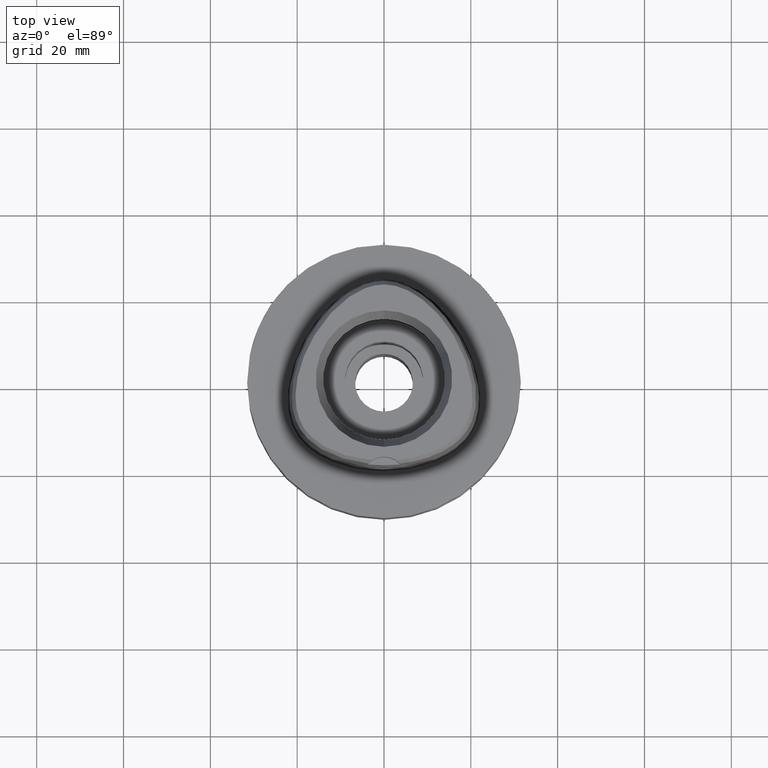
[diagram: clean part render]
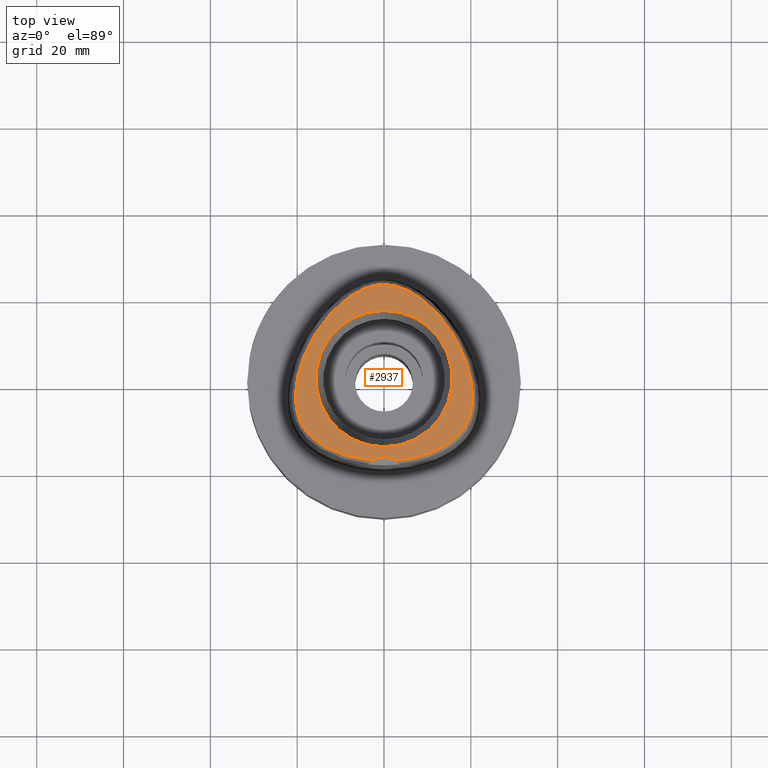
[diagram: same view with one face highlighted and labeled with its STEP entity id]
A machine part, top view. The second image highlights one B-rep face of the part: STEP entity #2937.
In plain terms, the highlighted planar face has unit normal (0, 0, 1).
Its self-contained STEP definition (entity closure, byte-faithful):
#4 = CARTESIAN_POINT ( 'NONE',  ( -7.655222869372603434, 19.09452359226051499, 37.99999999999657518 ) ) ;
#70 = CARTESIAN_POINT ( 'NONE',  ( 20.30478359881995232, -2.175347700950326590, 37.99999999999653966 ) ) ;
#81 = CARTESIAN_POINT ( 'NONE',  ( -2.682279906006999948, -18.78035848609999903, 38.00000000000000000 ) ) ;
#95 = CARTESIAN_POINT ( 'NONE',  ( 6.760281394351300044, 19.65404668909741659, 37.99999999999610623 ) ) ;
#104 = EDGE_LOOP ( 'NONE', ( #3898, #4051 ) ) ;
#117 = CARTESIAN_POINT ( 'NONE',  ( 2.736932690726805451, 21.34527940056899808, 37.99999999999971578 ) ) ;
#146 = CARTESIAN_POINT ( 'NONE',  ( 3.482188079160006833, 21.13472718027362163, 37.99999999999623412 ) ) ;
#168 = CARTESIAN_POINT ( 'NONE',  ( -12.37132652997894233, -16.34104299088286538, 38.00000000000146372 ) ) ;
#176 = CARTESIAN_POINT ( 'NONE',  ( 16.09765529146627827, 9.909410920133350231, 37.99999999999131717 ) ) ;
#189 = CARTESIAN_POINT ( 'NONE',  ( -20.38301517463099444, -3.278344853328190034, 37.99999999999872102 ) ) ;
#214 = CARTESIAN_POINT ( 'NONE',  ( -7.599370508970445748, -18.01010694911639121, 38.00000000000269296 ) ) ;
#236 = CARTESIAN_POINT ( 'NONE',  ( -8.930096025510854574, -17.65000298921539823, 37.99999999999941025 ) ) ;
#283 = CARTESIAN_POINT ( 'NONE',  ( -15.24692477331905671, 11.25717358965922621, 38.00000000000510880 ) ) ;
#305 = CARTESIAN_POINT ( 'NONE',  ( -10.48962422759867152, 16.86631853279130766, 38.00000000000136424 ) ) ;
#432 = VERTEX_POINT ( 'NONE', #81 ) ;
#471 = CARTESIAN_POINT ( 'NONE',  ( 15.72078707640384820, -14.29615620309023960, 38.00000000000054001 ) ) ;
#500 = CARTESIAN_POINT ( 'NONE',  ( 18.24247239569593404, 5.672548708072124413, 37.99999999999958078 ) ) ;
#511 = VERTEX_POINT ( 'NONE', #2743 ) ;
#520 = CARTESIAN_POINT ( 'NONE',  ( 18.99619228226881873, -10.46780014453620034, 37.99999999999307931 ) ) ;
#544 = CARTESIAN_POINT ( 'NONE',  ( 1.325020189552571503, 21.61081414409536805, 37.99999999999428013 ) ) ;
#567 = CARTESIAN_POINT ( 'NONE',  ( -20.40060226222869488, -4.311417605381804741, 38.00000000000196820 ) ) ;
#576 = CARTESIAN_POINT ( 'NONE',  ( 19.64387775268211556, 1.522048414457864096, 37.99999999999704414 ) ) ;
#593 = CARTESIAN_POINT ( 'NONE',  ( -19.94188961899396517, 0.2242544969878184913, 38.00000000000156319 ) ) ;
#665 = CARTESIAN_POINT ( 'NONE',  ( -16.93638123745276403, -13.22593246128309019, 37.99999999999478462 ) ) ;
#690 = CARTESIAN_POINT ( 'NONE',  ( -11.46564124494769388, 15.92741340513784110, 37.99999999999322142 ) ) ;
#711 = CARTESIAN_POINT ( 'NONE',  ( -19.26324493738722765, 2.868570891457355998, 37.99999999999872813 ) ) ;
#759 = CARTESIAN_POINT ( 'NONE',  ( -2.017025177696301963, 21.50280829368474400, 37.99999999999538147 ) ) ;
#860 = CARTESIAN_POINT ( 'NONE',  ( -3.470663392950000163E-11, 21.68728795390000030, 38.00000000000000000 ) ) ;
#884 = CARTESIAN_POINT ( 'NONE',  ( 14.21382211799414819, -15.34284287400055824, 37.99999999999823785 ) ) ;
#899 = CIRCLE ( 'NONE', #2195, 15.71487483155999776 ) ;
#913 = CARTESIAN_POINT ( 'NONE',  ( 15.24661770199036859, 11.25762885478625108, 37.99999999999867129 ) ) ;
#938 = CARTESIAN_POINT ( 'NONE',  ( 18.79595068775774536, 4.257753965102486937, 37.99999999999854339 ) ) ;
#966 = CARTESIAN_POINT ( 'NONE',  ( 4.255661039972385318, 20.86618068829834982, 37.99999999999498357 ) ) ;
#984 = CARTESIAN_POINT ( 'NONE',  ( -17.91005512243596698, -12.13778127739563750, 37.99999999999936762 ) ) ;
#1054 = CARTESIAN_POINT ( 'NONE',  ( -18.67608643721901629, -11.03561202291101573, 37.99999999999879918 ) ) ;
#1066 = CARTESIAN_POINT ( 'NONE',  ( 0.0000000000000000000, 0.0000000000000000000, 38.00000000000000000 ) ) ;
#1101 = CARTESIAN_POINT ( 'NONE',  ( -12.44116897271441680, 14.89128547409751491, 37.99999999999761968 ) ) ;
#1124 = CARTESIAN_POINT ( 'NONE',  ( -0.2181979014508680648, 21.68728795389069930, 37.99999999999545253 ) ) ;
#1239 = CARTESIAN_POINT ( 'NONE',  ( 16.93855157777624498, -13.22377441789050678, 37.99999999999112532 ) ) ;
#1256 = ORIENTED_EDGE ( 'NONE', *, *, #4597, .F. ) ;
#1264 = CARTESIAN_POINT ( 'NONE',  ( 0.6513209347956142592, 21.67370899611885804, 37.99999999999688782 ) ) ;
#1290 = CARTESIAN_POINT ( 'NONE',  ( 8.936919536467357261, -17.64796721715781658, 37.99999999999330669 ) ) ;
#1318 = CARTESIAN_POINT ( 'NONE',  ( 7.655962789343898400, 19.09402979100165965, 38.00000000000339639 ) ) ;
#1340 = CARTESIAN_POINT ( 'NONE',  ( 12.44125753246752986, 14.89118158853901974, 37.99999999999801048 ) ) ;
#1359 = CARTESIAN_POINT ( 'NONE',  ( -15.00295592773774089, -14.82617991125712109, 38.00000000000257216 ) ) ;
#1366 = DIRECTION ( 'NONE',  ( 0.0000000000000000000, -1.000000000000000000, 0.0000000000000000000 ) ) ;
#1410 = CARTESIAN_POINT ( 'NONE',  ( -11.31790883121477087, -16.80796958613890268, 37.99999999999396749 ) ) ;
#1432 = CARTESIAN_POINT ( 'NONE',  ( -4.706994425064463528, -18.56721852572441733, 38.00000000000720490 ) ) ;
#1457 = CARTESIAN_POINT ( 'NONE',  ( -14.34402387965957715, 12.54761970512388025, 37.99999999999798206 ) ) ;
#1483 = CARTESIAN_POINT ( 'NONE',  ( -9.524337278002398932, 17.70558492631218428, 38.00000000000005684 ) ) ;
#1530 = CARTESIAN_POINT ( 'NONE',  ( -5.893543501601275381, 20.13235399352214472, 38.00000000000198241 ) ) ;
#1561 = EDGE_CURVE ( 'NONE', #432, #511, #1950, .T. ) ;
#1621 = CARTESIAN_POINT ( 'NONE',  ( 18.31883910943066951, -11.58595831188162961, 37.99999999999618439 ) ) ;
#1648 = CARTESIAN_POINT ( 'NONE',  ( 9.524842839488274038, 17.70516372194600763, 38.00000000000160583 ) ) ;
#1662 = VERTEX_POINT ( 'NONE', #4273 ) ;
#1674 = CARTESIAN_POINT ( 'NONE',  ( 10.48999540691025700, 16.86597469869619559, 37.99999999999843681 ) ) ;
#1676 = ORIENTED_EDGE ( 'NONE', *, *, #1561, .F. ) ;
#1719 = CARTESIAN_POINT ( 'NONE',  ( -20.27898581532648237, -6.181921586190489926, 37.99999999999319300 ) ) ;
#1727 = CARTESIAN_POINT ( 'NONE',  ( 19.26272899268519012, 2.870227893749674131, 37.99999999999284483 ) ) ;
#1788 = CARTESIAN_POINT ( 'NONE',  ( -6.188376196366633053, -18.31830638231285491, 37.99999999999435829 ) ) ;
#1822 = AXIS2_PLACEMENT_3D ( 'NONE', #3089, #3474, #3887 ) ;
#1838 = CARTESIAN_POINT ( 'NONE',  ( -13.40435640711657683, 13.76268382997220563, 37.99999999999792522 ) ) ;
#1839 = EDGE_LOOP ( 'NONE', ( #1256, #1676, #4024 ) ) ;
#1861 = CARTESIAN_POINT ( 'NONE',  ( -1.323674540694443902, 21.61098849315967030, 38.00000000000201794 ) ) ;
#1931 = DIRECTION ( 'NONE',  ( 0.0000000000000000000, 0.0000000000000000000, 1.000000000000000000 ) ) ;
#1950 = B_SPLINE_CURVE_WITH_KNOTS ( 'NONE', 3,
 ( #2173, #3700, #4807, #1432, #1788, #214, #236, #3327, #1410, #168, #2128, #2218, #1359, #2895, #4507, #665, #2942, #984, #4485, #1054, #2509, #4039, #3656, #4782, #2575, #2600, #1719, #3249, #567, #189, #4438, #4064, #593, #2151, #711, #3441, #4221, #4627, #4971, #4150, #283, #1457, #1838, #1101, #690, #305, #1483, #4897, #4, #3036, #1530, #4584, #3080, #2623, #4560, #759, #1861, #3373, #1124, #3014 ),
 .UNSPECIFIED., .F., .F.,
 ( 4, 1, 1, 1, 1, 1, 1, 1, 1, 1, 1, 1, 1, 1, 1, 1, 1, 1, 1, 1, 1, 1, 1, 1, 1, 1, 1, 1, 1, 1, 1, 1, 1, 1, 1, 1, 1, 1, 1, 1, 1, 1, 1, 1, 1, 1, 1, 1, 1, 1, 1, 1, 1, 1, 1, 1, 1, 4 ),
 ( 0.0000000000000000000, 0.005420919554200098744, 0.02318126027639999531, 0.04094160099879995407, 0.05870194172099996166, 0.07646228244330000035, 0.09422262316550000794, 0.1119829638877999356, 0.1297433046099999432, 0.1475036453321999508, 0.1652639860544999895, 0.1830243267768000281, 0.2007846674991000668, 0.2185450082212999634, 0.2363053489436000021, 0.2540656896658000097, 0.2718260303881000484, 0.2895863711103000560, 0.3073467118325999836, 0.3251070525547999912, 0.3428673932771000299, 0.3606277339994000686, 0.3783880747216000762, 0.3961484154438998928, 0.4139087561661000114, 0.4316690968884000501, 0.4494294376106000577, 0.4671897783328999854, 0.4849501190552000240, 0.5027104597774000316, 0.5204708004996999593, 0.5382311412219000779, 0.5559914819442000056, 0.5737518226664000132, 0.5915121633886999408, 0.6092725041108999484, 0.6270328448331999871, 0.6447931855555000258, 0.6625535262777000334, 0.6803138669999999610, 0.6980742077221999686, 0.7158345484445000073, 0.7335948891667000149, 0.7513552298890000536, 0.7691155706112000612, 0.7868759113336000199, 0.8046362520558000275, 0.8223965927780999552, 0.8401569335002999628, 0.8579172742224999704, 0.8756776149448000091, 0.8934379556670000166, 0.9111982963893099363, 0.9289586371115700070, 0.9467189778338299666, 0.9644793185560800453, 0.9822396592783400049, 1.000000000000000000 ),
 .UNSPECIFIED. ) ;
#2027 = CARTESIAN_POINT ( 'NONE',  ( 15.00628712263210751, -14.82385870794422011, 37.99999999999617728 ) ) ;
#2054 = CARTESIAN_POINT ( 'NONE',  ( 10.17751632998319700, -17.24426134459265825, 37.99999999999709388 ) ) ;
#2079 = CARTESIAN_POINT ( 'NONE',  ( 17.60373714027972625, 7.099883643192929306, 37.99999999999411671 ) ) ;
#2106 = CARTESIAN_POINT ( 'NONE',  ( 5.059249257021361856, 20.53399274679488684, 37.99999999999135269 ) ) ;
#2128 = CARTESIAN_POINT ( 'NONE',  ( -13.33457781970028222, -15.85148397417797739, 38.00000000000603251 ) ) ;
#2151 = CARTESIAN_POINT ( 'NONE',  ( -19.64434054693564491, 1.520253387635800202, 37.99999999999477751 ) ) ;
#2173 = CARTESIAN_POINT ( 'NONE',  ( -2.682279906006999948, -18.78035848609999903, 38.00000000000000000 ) ) ;
#2195 = AXIS2_PLACEMENT_3D ( 'NONE', #1066, #2630, #1366 ) ;
#2218 = CARTESIAN_POINT ( 'NONE',  ( -14.21001600787850450, -15.34519100085690901, 37.99999999999521805 ) ) ;
#2314 = VERTEX_POINT ( 'NONE', #2789 ) ;
#2320 = FACE_BOUND ( 'NONE', #104, .T. ) ;
#2381 = EDGE_CURVE ( 'NONE', #4580, #432, #3838, .T. ) ;
#2408 = CARTESIAN_POINT ( 'NONE',  ( 5.894487344450890731, 20.13186406532267725, 37.99999999999030820 ) ) ;
#2436 = CARTESIAN_POINT ( 'NONE',  ( 12.37622418509489464, -16.33871033286414232, 37.99999999999431566 ) ) ;
#2463 = CARTESIAN_POINT ( 'NONE',  ( 16.88599964843550794, 8.518708218770330021, 37.99999999999685230 ) ) ;
#2491 = CARTESIAN_POINT ( 'NONE',  ( 19.94150023627758728, 0.2261566111946525237, 37.99999999999804601 ) ) ;
#2509 = CARTESIAN_POINT ( 'NONE',  ( -18.99520880204024209, -10.46968343926450729, 37.99999999999928946 ) ) ;
#2517 = CARTESIAN_POINT ( 'NONE',  ( 11.46587147800062034, 15.92717600803250022, 37.99999999999866418 ) ) ;
#2575 = CARTESIAN_POINT ( 'NONE',  ( -19.98419490692067768, -7.809898894996216256, 37.99999999999869260 ) ) ;
#2600 = CARTESIAN_POINT ( 'NONE',  ( -20.15090095365181710, -7.024227649787724737, 38.00000000000494538 ) ) ;
#2623 = CARTESIAN_POINT ( 'NONE',  ( -3.481017203588934184, 21.13509756882168134, 37.99999999999846523 ) ) ;
#2630 = DIRECTION ( 'NONE',  ( 0.0000000000000000000, 0.0000000000000000000, 1.000000000000000000 ) ) ;
#2743 = CARTESIAN_POINT ( 'NONE',  ( -3.470663392950000163E-11, 21.68728795390000030, 38.00000000000000000 ) ) ;
#2789 = CARTESIAN_POINT ( 'NONE',  ( 0.0000000000000000000, -15.71487483155999776, 38.00000000000000000 ) ) ;
#2795 = AXIS2_PLACEMENT_3D ( 'NONE', #4973, #1931, #3083 ) ;
#2806 = CARTESIAN_POINT ( 'NONE',  ( 16.36283630828776481, -13.76236604535425556, 38.00000000000084555 ) ) ;
#2812 = CARTESIAN_POINT ( 'NONE',  ( 0.0000000000000000000, -23.00000000000000000, 38.00000000000000000 ) ) ;
#2855 = CARTESIAN_POINT ( 'NONE',  ( 8.578848111817571009, 18.44609846598882541, 37.99999999999457856 ) ) ;
#2881 = CARTESIAN_POINT ( 'NONE',  ( 19.28677546796982867, -9.867757137506544041, 37.99999999999212008 ) ) ;
#2895 = CARTESIAN_POINT ( 'NONE',  ( -15.71788912669412674, -14.29843101566463304, 37.99999999999928235 ) ) ;
#2937 = ADVANCED_FACE ( 'NONE', ( #4617, #2320 ), #4233, .T. ) ;
#2942 = CARTESIAN_POINT ( 'NONE',  ( -17.45119705493735296, -12.68365517585349700, 38.00000000000534328 ) ) ;
#3003 = CARTESIAN_POINT ( 'NONE',  ( 3.529311563348127123, -18.70747079909919464, 37.99999999999565858 ) ) ;
#3014 = CARTESIAN_POINT ( 'NONE',  ( -3.470663392950000163E-11, 21.68728795390000030, 38.00000000000000000 ) ) ;
#3036 = CARTESIAN_POINT ( 'NONE',  ( -6.759433772717536648, 19.65454812513075566, 37.99999999999465672 ) ) ;
#3075 = DIRECTION ( 'NONE',  ( 0.0000000000000000000, 0.0000000000000000000, 1.000000000000000000 ) ) ;
#3080 = CARTESIAN_POINT ( 'NONE',  ( -4.254559144977823060, 20.86660163697625947, 37.99999999999680966 ) ) ;
#3083 = DIRECTION ( 'NONE',  ( 0.0000000000000000000, 1.000000000000000000, 0.0000000000000000000 ) ) ;
#3089 = CARTESIAN_POINT ( 'NONE',  ( 0.0000000000000000000, 0.0000000000000000000, 38.00000000000000000 ) ) ;
#3147 = CARTESIAN_POINT ( 'NONE',  ( 17.91165267839006958, -12.13575389397388982, 37.99999999999867839 ) ) ;
#3171 = CARTESIAN_POINT ( 'NONE',  ( 0.2185816947241346619, 21.68728795390052611, 37.99999999999987921 ) ) ;
#3188 = AXIS2_PLACEMENT_3D ( 'NONE', #2812, #3075, #4623 ) ;
#3199 = CARTESIAN_POINT ( 'NONE',  ( 20.40062138795057933, -4.309334958867799159, 37.99999999999746336 ) ) ;
#3208 = EDGE_CURVE ( 'NONE', #1662, #2314, #4564, .T. ) ;
#3249 = CARTESIAN_POINT ( 'NONE',  ( -20.36398648679470824, -5.278470727085581515, 37.99999999999290168 ) ) ;
#3257 = CARTESIAN_POINT ( 'NONE',  ( 20.38292172607564368, -3.276278498261759431, 37.99999999999027978 ) ) ;
#3327 = CARTESIAN_POINT ( 'NONE',  ( -10.17136073855190936, -17.24644253470502875, 38.00000000000339639 ) ) ;
#3359 = CARTESIAN_POINT ( 'NONE',  ( 2.845098933833420052, -18.76733062685853781, 37.99999999999658939 ) ) ;
#3373 = CARTESIAN_POINT ( 'NONE',  ( -0.6498990081535394037, 21.67378274708117658, 37.99999999999234035 ) ) ;
#3379 = CARTESIAN_POINT ( 'NONE',  ( 2.682287482605000051, -18.78036330228999873, 38.00000000000000000 ) ) ;
#3441 = CARTESIAN_POINT ( 'NONE',  ( -18.79649882725054866, 4.256255933891428533, 37.99999999999234035 ) ) ;
#3474 = DIRECTION ( 'NONE',  ( 0.0000000000000000000, 0.0000000000000000000, 1.000000000000000000 ) ) ;
#3532 = CARTESIAN_POINT ( 'NONE',  ( 19.54993126781491242, -9.226212439886440464, 37.99999999999828049 ) ) ;
#3560 = CARTESIAN_POINT ( 'NONE',  ( 13.33890749495390793, -15.84912955619821595, 37.99999999999802469 ) ) ;
#3612 = CARTESIAN_POINT ( 'NONE',  ( 2.682287482605000051, -18.78036330228999873, 38.00000000000000000 ) ) ;
#3638 = CARTESIAN_POINT ( 'NONE',  ( 13.40430406168848521, 13.76274261013127820, 37.99999999999626965 ) ) ;
#3656 = CARTESIAN_POINT ( 'NONE',  ( -19.54919922642174512, -9.228169790568228947, 38.00000000000355271 ) ) ;
#3700 = CARTESIAN_POINT ( 'NONE',  ( -2.841965291530708981, -18.76757795571908360, 37.99999999999978684 ) ) ;
#3730 = CARTESIAN_POINT ( 'NONE',  ( 7.606839420237956340, -18.00827588386659528, 37.99999999999254641 ) ) ;
#3838 = CIRCLE ( 'NONE', #3188, 5.000000000000000888 ) ;
#3887 = DIRECTION ( 'NONE',  ( 1.000000000000000000, 0.0000000000000000000, 0.0000000000000000000 ) ) ;
#3898 = ORIENTED_EDGE ( 'NONE', *, *, #4663, .F. ) ;
#3946 = CARTESIAN_POINT ( 'NONE',  ( 20.15982952132596395, -1.007721426051536584, 38.00000000000264322 ) ) ;
#3973 = CARTESIAN_POINT ( 'NONE',  ( 11.32341394162900094, -16.80569392800676809, 37.99999999999312195 ) ) ;
#3997 = CARTESIAN_POINT ( 'NONE',  ( 19.78323211892661959, -8.541156231035925472, 37.99999999999182165 ) ) ;
#4024 = ORIENTED_EDGE ( 'NONE', *, *, #2381, .F. ) ;
#4039 = CARTESIAN_POINT ( 'NONE',  ( -19.28591707037127989, -9.869682450886763547, 37.99999999999346301 ) ) ;
#4048 = CARTESIAN_POINT ( 'NONE',  ( 2.018320379028031297, 21.50256508436909897, 37.99999999999719336 ) ) ;
#4051 = ORIENTED_EDGE ( 'NONE', *, *, #3208, .F. ) ;
#4064 = CARTESIAN_POINT ( 'NONE',  ( -20.16012968311446230, -1.009698174524597203, 38.00000000000125056 ) ) ;
#4150 = CARTESIAN_POINT ( 'NONE',  ( -16.09805956313755360, 9.908742513516999750, 38.00000000000104450 ) ) ;
#4221 = CARTESIAN_POINT ( 'NONE',  ( -18.24302769441849748, 5.671232572958687435, 37.99999999999521805 ) ) ;
#4233 = PLANE ( 'NONE',  #1822 ) ;
#4273 = CARTESIAN_POINT ( 'NONE',  ( 0.0000000000000000000, 15.71487483155999776, 38.00000000000000000 ) ) ;
#4313 = CARTESIAN_POINT ( 'NONE',  ( 18.67722910597892749, -11.03372143228313540, 37.99999999999958789 ) ) ;
#4315 = B_SPLINE_CURVE_WITH_KNOTS ( 'NONE', 3,
 ( #860, #3171, #1264, #544, #4048, #117, #146, #966, #2106, #2408, #95, #1318, #2855, #1648, #1674, #2517, #1340, #3638, #4369, #913, #176, #2463, #2079, #500, #938, #1727, #576, #2491, #3946, #70, #3257, #3199, #4742, #4714, #4341, #4790, #3997, #3532, #2881, #520, #4313, #1621, #3147, #4693, #1239, #2806, #471, #2027, #884, #3560, #2436, #3973, #2054, #1290, #3730, #4472, #4860, #3003, #3359, #3379 ),
 .UNSPECIFIED., .F., .F.,
 ( 4, 1, 1, 1, 1, 1, 1, 1, 1, 1, 1, 1, 1, 1, 1, 1, 1, 1, 1, 1, 1, 1, 1, 1, 1, 1, 1, 1, 1, 1, 1, 1, 1, 1, 1, 1, 1, 1, 1, 1, 1, 1, 1, 1, 1, 1, 1, 1, 1, 1, 1, 1, 1, 1, 1, 1, 1, 4 ),
 ( 0.0000000000000000000, 0.01775854187129999318, 0.03551708374169992855, 0.05327562561200005486, 0.07103416748239999023, 0.08879270935270000553, 0.1065512512231000519, 0.1243097930933999562, 0.1420683349638000026, 0.1598268768341000179, 0.1775854187044000332, 0.1953439605747999686, 0.2131025024450999839, 0.2308610443155000302, 0.2486195861857999345, 0.2663781280563000120, 0.2841366699266000273, 0.3018952117970000737, 0.3196537536672999780, 0.3374122955377000244, 0.3551708374080000397, 0.3729293792782999439, 0.3906879211486999903, 0.4084464630190000056, 0.4262050048894000520, 0.4439635467596999563, 0.4617220886301000027, 0.4794806305004000180, 0.4972391723707999533, 0.5149977142410999686, 0.5327562561113999839, 0.5505147979818000303, 0.5682733398521000456, 0.5860318817224999810, 0.6037904235927999963, 0.6215489654632000427, 0.6393075073334999470, 0.6570660492038999934, 0.6748245910742000087, 0.6925831329445000240, 0.7103416748149000703, 0.7281002166851999746, 0.7458587585556000210, 0.7636173004259000363, 0.7813758422962999717, 0.7991343841665999870, 0.8168929260370000334, 0.8346514679073000487, 0.8524100097776999840, 0.8701685516479999993, 0.8879270935183000146, 0.9056856353886799660, 0.9234441772589799813, 0.9412027191293600437, 0.9589612609997000270, 0.9767198028700500023, 0.9944783447403919840, 1.000000000000000000 ),
 .UNSPECIFIED. ) ;
#4341 = CARTESIAN_POINT ( 'NONE',  ( 20.15127154947744614, -7.022178451341702043, 38.00000000000146372 ) ) ;
#4369 = CARTESIAN_POINT ( 'NONE',  ( 14.34383722811165107, 12.54786717290263276, 37.99999999999805311 ) ) ;
#4438 = CARTESIAN_POINT ( 'NONE',  ( -20.30498420087040756, -2.177378896257804897, 38.00000000000007105 ) ) ;
#4472 = CARTESIAN_POINT ( 'NONE',  ( 6.196495988003977828, -18.31673538864712114, 37.99999999999509015 ) ) ;
#4485 = CARTESIAN_POINT ( 'NONE',  ( -18.31748213707782824, -11.58791794387471796, 37.99999999999767653 ) ) ;
#4507 = CARTESIAN_POINT ( 'NONE',  ( -16.36032397154133733, -13.76458520344791481, 38.00000000000329692 ) ) ;
#4560 = CARTESIAN_POINT ( 'NONE',  ( -2.735698246183475568, 21.34559102902211691, 38.00000000000405009 ) ) ;
#4564 = CIRCLE ( 'NONE', #2795, 15.71487483155999776 ) ;
#4580 = VERTEX_POINT ( 'NONE', #3612 ) ;
#4584 = CARTESIAN_POINT ( 'NONE',  ( -5.058220461389341338, 20.53445508814798970, 37.99999999999894840 ) ) ;
#4597 = EDGE_CURVE ( 'NONE', #511, #4580, #4315, .T. ) ;
#4617 = FACE_OUTER_BOUND ( 'NONE', #1839, .T. ) ;
#4623 = DIRECTION ( 'NONE',  ( 0.0000000000000000000, 1.000000000000000000, 0.0000000000000000000 ) ) ;
#4627 = CARTESIAN_POINT ( 'NONE',  ( -17.60426951086811798, 7.098774535281910936, 37.99999999999914024 ) ) ;
#4663 = EDGE_CURVE ( 'NONE', #2314, #1662, #899, .T. ) ;
#4693 = CARTESIAN_POINT ( 'NONE',  ( 17.45306278053658744, -12.68156296993930710, 38.00000000000324718 ) ) ;
#4714 = CARTESIAN_POINT ( 'NONE',  ( 20.27923816685809655, -6.179850483268306327, 38.00000000000305533 ) ) ;
#4742 = CARTESIAN_POINT ( 'NONE',  ( 20.36412151361323453, -5.276385427453643473, 37.99999999999969447 ) ) ;
#4782 = CARTESIAN_POINT ( 'NONE',  ( -19.78262210840576785, -8.543146992552880903, 37.99999999999843681 ) ) ;
#4790 = CARTESIAN_POINT ( 'NONE',  ( 19.98468477323309855, -7.807876343103734129, 37.99999999999038636 ) ) ;
#4807 = CARTESIAN_POINT ( 'NONE',  ( -3.522896839654551915, -18.70811514173297141, 37.99999999999635492 ) ) ;
#4860 = CARTESIAN_POINT ( 'NONE',  ( 4.715576077241848019, -18.56597918135421921, 37.99999999999072742 ) ) ;
#4897 = CARTESIAN_POINT ( 'NONE',  ( -8.578220530114030851, 18.44656747109812756, 38.00000000000319744 ) ) ;
#4971 = CARTESIAN_POINT ( 'NONE',  ( -16.88647904405272016, 8.517821442303187496, 38.00000000000419220 ) ) ;
#4973 = CARTESIAN_POINT ( 'NONE',  ( 0.0000000000000000000, 0.0000000000000000000, 38.00000000000000000 ) ) ;